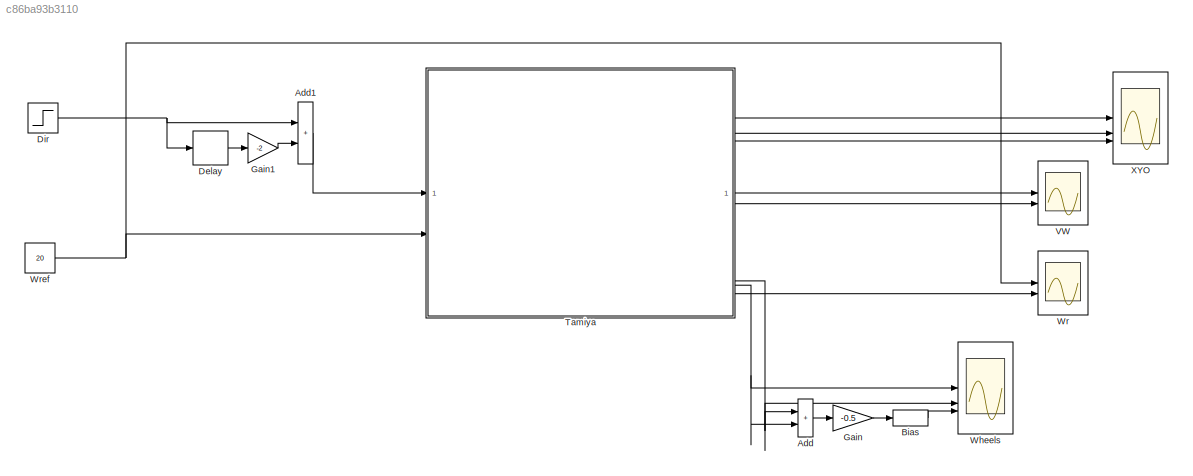
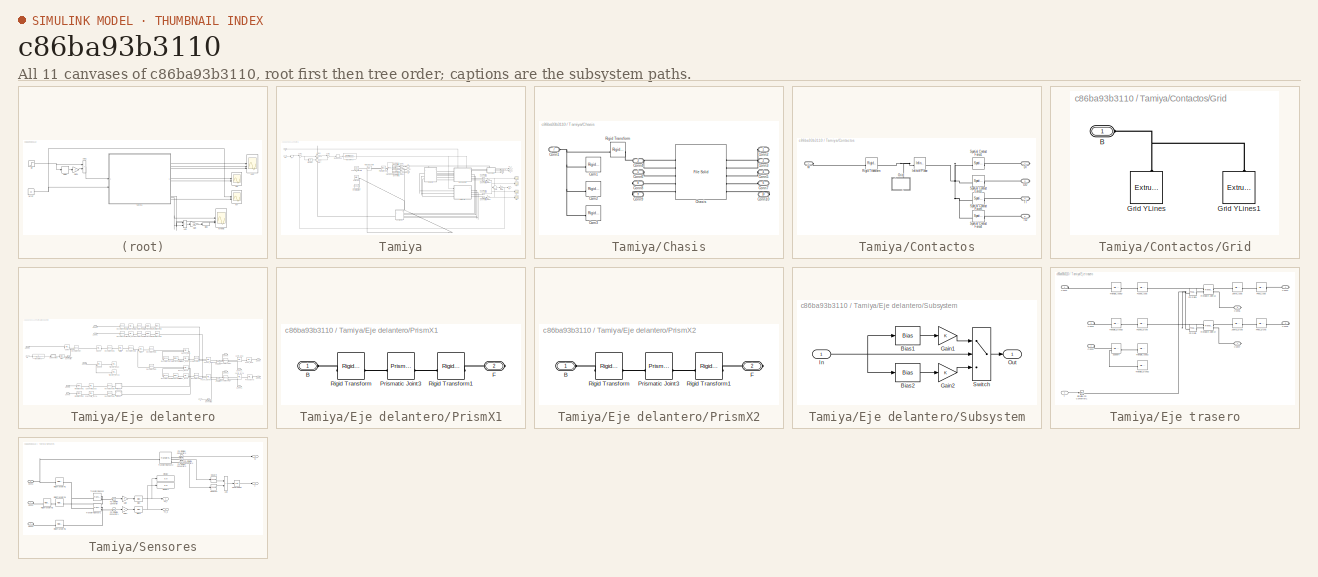
[diagram: thumbnail index - all 11 canvases of the model, root first then tree order]
MODEL slx_c86ba93b3110
KIND model
CONFIG AbsTol = 1e-3
CONFIG EnableMultiTasking = on
CONFIG FixedStep = T0
CONFIG MaxStep = 0.001
CONFIG MinStep = auto
CONFIG PostLoadFcn = T=0.01 ; T0=0.0005 ;\nsf=1 ; df=0.6 ; dc=0.01 ; rz=0.01 ;\n\ndimx=10 ; dimy=10 ; ancho=0.01 ; alto=0.01 ; hueco=0.5 ; color=[1 0 0] ;\nGGx=[] ;\nfor ii=-dimx/(2*hueco)+1:dimx/(2*hueco)+1\n    GGx=[GGx ; [-ancho+(ii-1)*(2*hueco) dimy ; -ancho+(ii-1)*(2*hueco) -dimy ; ancho+(ii-1)*(2*hueco) -dimy ; ancho+(ii-1)*(2*hueco) dimy]] ;\nend\nGGx=GGx*0.5 ;\nGGy=[] ;\nfor ii=-dimy/(2*hueco)+1:dimy/(2*hueco)+1\n    GGy...<+154ch>
CONFIG RelTol = 1e-3
CONFIG SampleTimeConstraint = Unconstrained
CONFIG SolverName = FixedStepAuto
CONFIG StartTime = 0.0
CONFIG StopTime = 35
BLOCK [Sum] Add
  IconShape = rectangular
BLOCK [Sum] Add1
  IconShape = rectangular
BLOCK [Bias] Bias
  Bias = 90
  SaturateOnIntegerOverflow = off
BLOCK [Delay] Delay
  DelayLength = 19.3/T
  InputPortMap = u0
BLOCK [Step] Dir
  After = 15
  SampleTime = T
BLOCK [Gain] Gain
  Gain = -0.5
BLOCK [Gain] Gain1
  Gain = -2
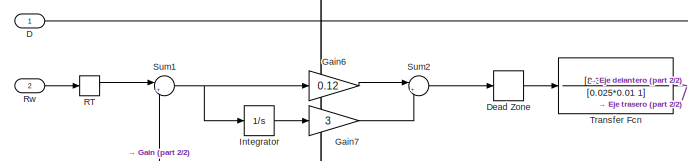
[diagram: Tamiya - part 1/2, top left region]
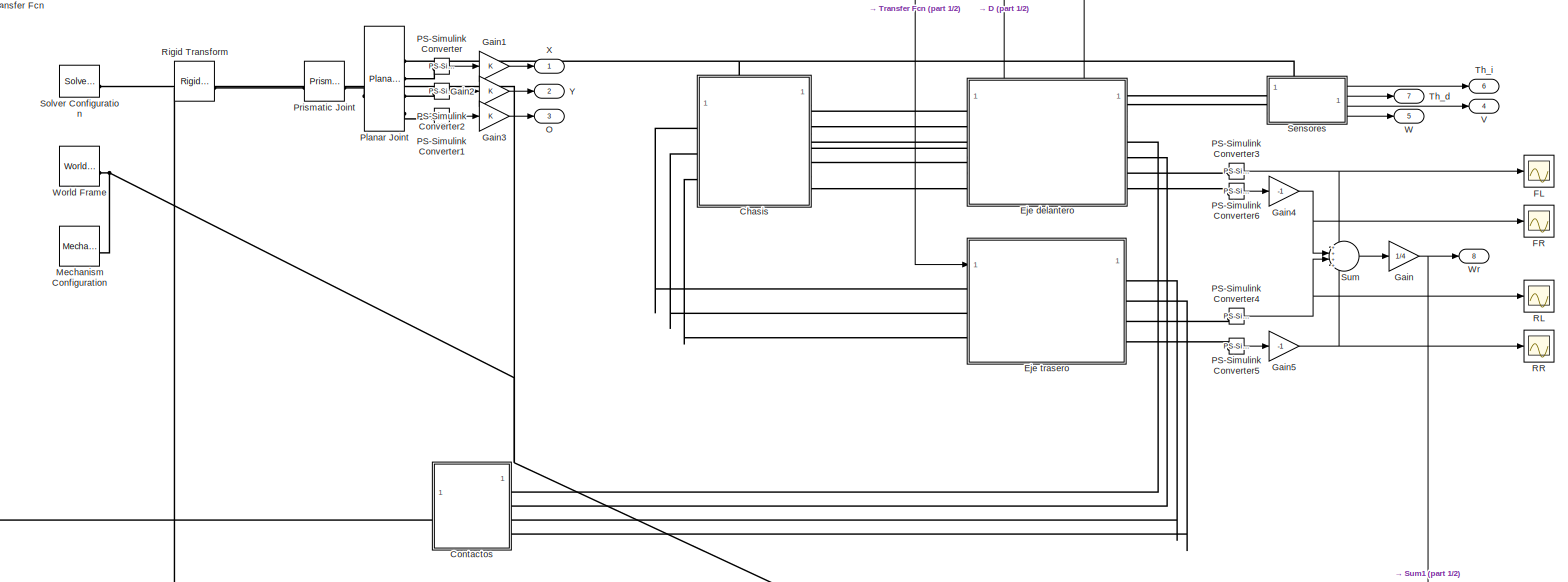
[diagram: Tamiya - part 2/2, central region]
BLOCK [SubSystem] Tamiya
BLOCK [SubSystem] Tamiya/Chasis
  PortSchema = {"entries":[{"content":{"sides":[{"content":{"connectorIds":["LConn1","LConn2","LConn3","LConn4","LConn5","LConn6"]},"type":"ConnectorPlacement.EquallySpacedRectSide","uuid":"4a00ef8b-857d-47c2-8fa9-792f76e3628b"},{"content":{"connectorIds":["RConn1","RConn2","RConn3"],"side":"RIGHT"},"type":"ConnectorPlacement.EquallySpacedRectSide","uuid":"2247647d-b745-4173-ae7c-671e52deb028"},{"content":{"conn...<+316ch>
BLOCK [Reference] Tamiya/Chasis/Cam1  REF=sm_lib/Frames and
Transforms/Rigid
Transform
  SourceBlock = sm_lib/Frames and\nTransforms/Rigid\nTransform
  SourceType = Rigid\nTransform
BLOCK [Reference] Tamiya/Chasis/Cam2  REF=sm_lib/Frames and
Transforms/Rigid
Transform
  SourceBlock = sm_lib/Frames and\nTransforms/Rigid\nTransform
  SourceType = Rigid\nTransform
BLOCK [Reference] Tamiya/Chasis/Cam3  REF=sm_lib/Frames and
Transforms/Rigid
Transform
  SourceBlock = sm_lib/Frames and\nTransforms/Rigid\nTransform
  SourceType = Rigid\nTransform
BLOCK [Reference] Tamiya/Chasis/Chasis  REF=sm_lib/Body Elements/File Solid
  SourceBlock = sm_lib/Body Elements/File Solid
  SourceType = File Solid
BLOCK [PMIOPort] Tamiya/Chasis/Conn1
  Port = 7
  Side = Left
BLOCK [PMIOPort] Tamiya/Chasis/Conn10
  Port = 10
  Side = Right
BLOCK [PMIOPort] Tamiya/Chasis/Conn2
  Side = Left
BLOCK [PMIOPort] Tamiya/Chasis/Conn3
  Port = 2
  Side = Left
BLOCK [PMIOPort] Tamiya/Chasis/Conn4
  Port = 3
  Side = Left
BLOCK [PMIOPort] Tamiya/Chasis/Conn5
  Port = 4
  Side = Left
BLOCK [PMIOPort] Tamiya/Chasis/Conn6
  Port = 5
  Side = Left
BLOCK [PMIOPort] Tamiya/Chasis/Conn7
  Port = 6
  Side = Left
BLOCK [PMIOPort] Tamiya/Chasis/Conn8
  Port = 8
  Side = Right
BLOCK [PMIOPort] Tamiya/Chasis/Conn9
  Port = 9
  Side = Right
BLOCK [Reference] Tamiya/Chasis/Rigid Transform  REF=sm_lib/Frames and
Transforms/Rigid
Transform
  SourceBlock = sm_lib/Frames and\nTransforms/Rigid\nTransform
  SourceType = Rigid\nTransform
BLOCK [SubSystem] Tamiya/Contactos
BLOCK [PMIOPort] Tamiya/Contactos/DD
  Port = 3
  Side = Right
BLOCK [PMIOPort] Tamiya/Contactos/DI
  Port = 2
  Side = Right
BLOCK [SubSystem] Tamiya/Contactos/Grid
  NameLocation = right
BLOCK [PMIOPort] Tamiya/Contactos/Grid/B
  Side = Left
BLOCK [Reference] Tamiya/Contactos/Grid/Grid YLines  REF=sm_lib/Body Elements/Extruded Solid
  NameLocation = right
  SourceBlock = sm_lib/Body Elements/Extruded Solid
  SourceType = Extruded Solid
BLOCK [Reference] Tamiya/Contactos/Grid/Grid YLines1  REF=sm_lib/Body Elements/Extruded Solid
  NameLocation = right
  SourceBlock = sm_lib/Body Elements/Extruded Solid
  SourceType = Extruded Solid
BLOCK [Reference] Tamiya/Contactos/Infinite Plane  REF=sm_lib/Curves and Surfaces/Infinite Plane
  SourceBlock = sm_lib/Curves and Surfaces/Infinite Plane
  SourceType = Infinite Plane
BLOCK [Reference] Tamiya/Contactos/Rigid Transform  REF=sm_lib/Frames and
Transforms/Rigid
Transform
  SourceBlock = sm_lib/Frames and\nTransforms/Rigid\nTransform
  SourceType = Rigid\nTransform
BLOCK [Reference] Tamiya/Contactos/Spatial Contact Force1  REF=sm_lib/Forces and
Torques/Spatial
Contact Force
  SourceBlock = sm_lib/Forces and\nTorques/Spatial\nContact Force
  SourceType = Spatial\nContact Force
BLOCK [Reference] Tamiya/Contactos/Spatial Contact Force2  REF=sm_lib/Forces and
Torques/Spatial
Contact Force
  SourceBlock = sm_lib/Forces and\nTorques/Spatial\nContact Force
  SourceType = Spatial\nContact Force
BLOCK [Reference] Tamiya/Contactos/Spatial Contact Force3  REF=sm_lib/Forces and
Torques/Spatial
Contact Force
  SourceBlock = sm_lib/Forces and\nTorques/Spatial\nContact Force
  SourceType = Spatial\nContact Force
BLOCK [Reference] Tamiya/Contactos/Spatial Contact Force4  REF=sm_lib/Forces and
Torques/Spatial
Contact Force
  SourceBlock = sm_lib/Forces and\nTorques/Spatial\nContact Force
  SourceType = Spatial\nContact Force
BLOCK [PMIOPort] Tamiya/Contactos/TD
  Port = 5
  Side = Right
BLOCK [PMIOPort] Tamiya/Contactos/TI
  Port = 4
  Side = Right
BLOCK [PMIOPort] Tamiya/Contactos/W
  Side = Left
BLOCK [Inport] Tamiya/D
BLOCK [DeadZone] Tamiya/Dead Zone
  LowerValue = -0.35
  UpperValue = 0.35
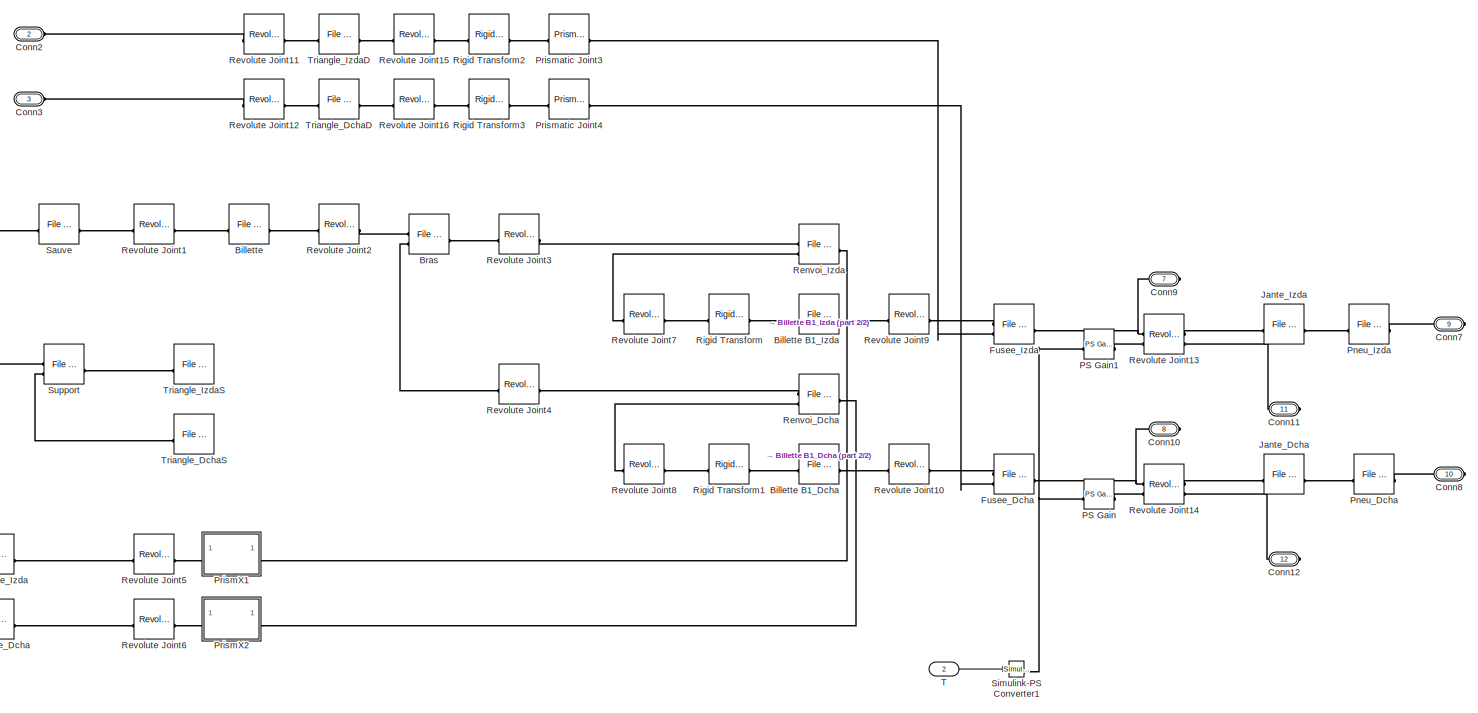
[diagram: Tamiya/Eje delantero - part 1/2, center side, full height]
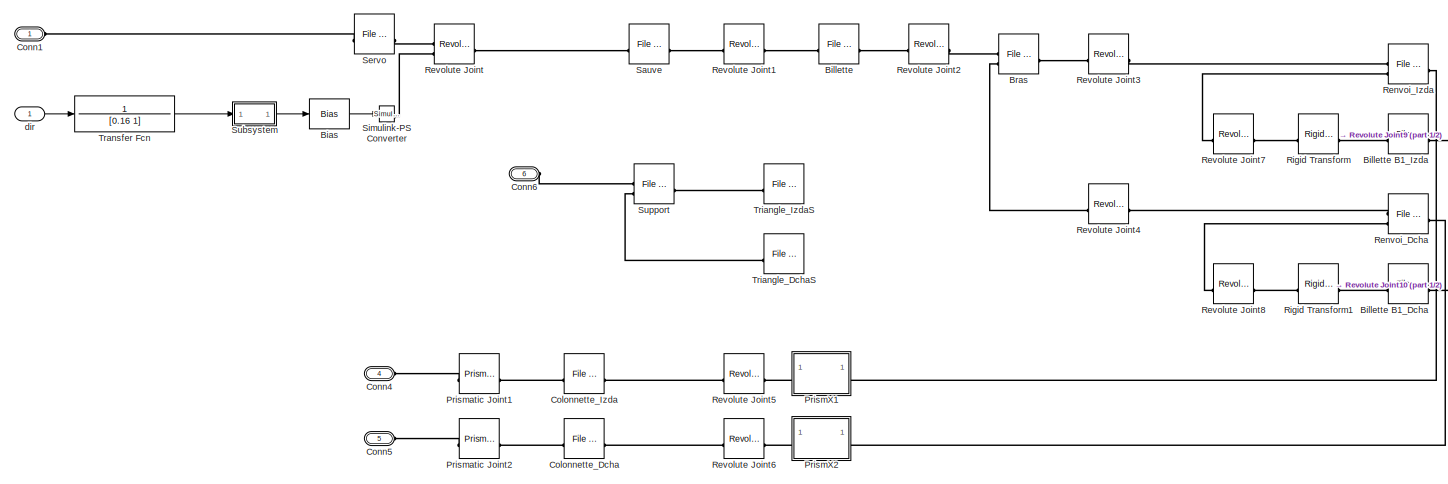
[diagram: Tamiya/Eje delantero - part 2/2, central region]
BLOCK [SubSystem] Tamiya/Eje delantero
  PortSchema = {"entries":[{"content":{"sides":[{"content":{"connectorIds":["LConn1","LConn2","LConn3","LConn4","LConn5","LConn6"]},"type":"ConnectorPlacement.EquallySpacedRectSide","uuid":"f52de6f6-a0c0-4908-b46e-2be19df1b405"},{"content":{"connectorIds":["RConn1","RConn2","RConn3","RConn4","RConn5","RConn6"],"side":"RIGHT"},"type":"ConnectorPlacement.EquallySpacedRectSide","uuid":"e6cd9f79-2de6-44f1-8695-a40e6...<+346ch>
BLOCK [Bias] Tamiya/Eje delantero/Bias
  Bias = 0.05
  SaturateOnIntegerOverflow = off
BLOCK [Reference] Tamiya/Eje delantero/Billette  REF=sm_lib/Body Elements/File Solid
  SourceBlock = sm_lib/Body Elements/File Solid
  SourceType = File Solid
BLOCK [Reference] Tamiya/Eje delantero/Billette B1_Dcha  REF=sm_lib/Body Elements/File Solid
  SourceBlock = sm_lib/Body Elements/File Solid
  SourceType = File Solid
BLOCK [Reference] Tamiya/Eje delantero/Billette B1_Izda  REF=sm_lib/Body Elements/File Solid
  SourceBlock = sm_lib/Body Elements/File Solid
  SourceType = File Solid
BLOCK [Reference] Tamiya/Eje delantero/Bras  REF=sm_lib/Body Elements/File Solid
  SourceBlock = sm_lib/Body Elements/File Solid
  SourceType = File Solid
BLOCK [Reference] Tamiya/Eje delantero/Colonnette_Dcha  REF=sm_lib/Body Elements/File Solid
  SourceBlock = sm_lib/Body Elements/File Solid
  SourceType = File Solid
BLOCK [Reference] Tamiya/Eje delantero/Colonnette_Izda  REF=sm_lib/Body Elements/File Solid
  SourceBlock = sm_lib/Body Elements/File Solid
  SourceType = File Solid
BLOCK [PMIOPort] Tamiya/Eje delantero/Conn1
  Side = Left
BLOCK [PMIOPort] Tamiya/Eje delantero/Conn10
  Port = 8
  Side = Right
BLOCK [PMIOPort] Tamiya/Eje delantero/Conn11
  Port = 11
  Side = Right
BLOCK [PMIOPort] Tamiya/Eje delantero/Conn12
  Port = 12
  Side = Right
BLOCK [PMIOPort] Tamiya/Eje delantero/Conn2
  Port = 2
  Side = Left
BLOCK [PMIOPort] Tamiya/Eje delantero/Conn3
  Port = 3
  Side = Left
BLOCK [PMIOPort] Tamiya/Eje delantero/Conn4
  Port = 4
  Side = Left
BLOCK [PMIOPort] Tamiya/Eje delantero/Conn5
  Port = 5
  Side = Left
BLOCK [PMIOPort] Tamiya/Eje delantero/Conn6
  Port = 6
  Side = Left
BLOCK [PMIOPort] Tamiya/Eje delantero/Conn7
  Port = 9
  Side = Right
BLOCK [PMIOPort] Tamiya/Eje delantero/Conn8
  Port = 10
  Side = Right
BLOCK [PMIOPort] Tamiya/Eje delantero/Conn9
  Port = 7
  Side = Right
BLOCK [Reference] Tamiya/Eje delantero/Fusee_Dcha  REF=sm_lib/Body Elements/File Solid
  SourceBlock = sm_lib/Body Elements/File Solid
  SourceType = File Solid
BLOCK [Reference] Tamiya/Eje delantero/Fusee_Izda  REF=sm_lib/Body Elements/File Solid
  SourceBlock = sm_lib/Body Elements/File Solid
  SourceType = File Solid
BLOCK [Reference] Tamiya/Eje delantero/Jante_Dcha  REF=sm_lib/Body Elements/File Solid
  SourceBlock = sm_lib/Body Elements/File Solid
  SourceType = File Solid
BLOCK [Reference] Tamiya/Eje delantero/Jante_Izda  REF=sm_lib/Body Elements/File Solid
  SourceBlock = sm_lib/Body Elements/File Solid
  SourceType = File Solid
BLOCK [Reference] Tamiya/Eje delantero/PS Gain  REF=fl_lib/Physical Signals/Functions/PS Gain
  SourceBlock = fl_lib/Physical Signals/Functions/PS Gain
  SourceType = PS Gain
BLOCK [Reference] Tamiya/Eje delantero/PS Gain1  REF=fl_lib/Physical Signals/Functions/PS Gain
  SourceBlock = fl_lib/Physical Signals/Functions/PS Gain
  SourceType = PS Gain
BLOCK [Reference] Tamiya/Eje delantero/Pneu_Dcha  REF=sm_lib/Body Elements/File Solid
  SourceBlock = sm_lib/Body Elements/File Solid
  SourceType = File Solid
BLOCK [Reference] Tamiya/Eje delantero/Pneu_Izda  REF=sm_lib/Body Elements/File Solid
  SourceBlock = sm_lib/Body Elements/File Solid
  SourceType = File Solid
BLOCK [SubSystem] Tamiya/Eje delantero/PrismX1
BLOCK [PMIOPort] Tamiya/Eje delantero/PrismX1/B
  Side = Left
BLOCK [PMIOPort] Tamiya/Eje delantero/PrismX1/F
  Port = 2
  Side = Right
BLOCK [Reference] Tamiya/Eje delantero/PrismX1/Prismatic Joint3  REF=sm_lib/Joints/Prismatic
Joint
  SourceBlock = sm_lib/Joints/Prismatic\nJoint
  SourceType = Prismatic\nJoint
BLOCK [Reference] Tamiya/Eje delantero/PrismX1/Rigid Transform  REF=sm_lib/Frames and
Transforms/Rigid
Transform
  SourceBlock = sm_lib/Frames and\nTransforms/Rigid\nTransform
  SourceType = Rigid\nTransform
BLOCK [Reference] Tamiya/Eje delantero/PrismX1/Rigid Transform1  REF=sm_lib/Frames and
Transforms/Rigid
Transform
  SourceBlock = sm_lib/Frames and\nTransforms/Rigid\nTransform
  SourceType = Rigid\nTransform
BLOCK [SubSystem] Tamiya/Eje delantero/PrismX2
BLOCK [PMIOPort] Tamiya/Eje delantero/PrismX2/B
  Side = Left
BLOCK [PMIOPort] Tamiya/Eje delantero/PrismX2/F
  Port = 2
  Side = Right
BLOCK [Reference] Tamiya/Eje delantero/PrismX2/Prismatic Joint3  REF=sm_lib/Joints/Prismatic
Joint
  SourceBlock = sm_lib/Joints/Prismatic\nJoint
  SourceType = Prismatic\nJoint
BLOCK [Reference] Tamiya/Eje delantero/PrismX2/Rigid Transform  REF=sm_lib/Frames and
Transforms/Rigid
Transform
  SourceBlock = sm_lib/Frames and\nTransforms/Rigid\nTransform
  SourceType = Rigid\nTransform
BLOCK [Reference] Tamiya/Eje delantero/PrismX2/Rigid Transform1  REF=sm_lib/Frames and
Transforms/Rigid
Transform
  SourceBlock = sm_lib/Frames and\nTransforms/Rigid\nTransform
  SourceType = Rigid\nTransform
BLOCK [Reference] Tamiya/Eje delantero/Prismatic Joint1  REF=sm_lib/Joints/Prismatic
Joint
  SourceBlock = sm_lib/Joints/Prismatic\nJoint
  SourceType = Prismatic\nJoint
BLOCK [Reference] Tamiya/Eje delantero/Prismatic Joint2  REF=sm_lib/Joints/Prismatic
Joint
  SourceBlock = sm_lib/Joints/Prismatic\nJoint
  SourceType = Prismatic\nJoint
BLOCK [Reference] Tamiya/Eje delantero/Prismatic Joint3  REF=sm_lib/Joints/Prismatic
Joint
  SourceBlock = sm_lib/Joints/Prismatic\nJoint
  SourceType = Prismatic\nJoint
BLOCK [Reference] Tamiya/Eje delantero/Prismatic Joint4  REF=sm_lib/Joints/Prismatic
Joint
  SourceBlock = sm_lib/Joints/Prismatic\nJoint
  SourceType = Prismatic\nJoint
BLOCK [Reference] Tamiya/Eje delantero/Renvoi_Dcha  REF=sm_lib/Body Elements/File Solid
  SourceBlock = sm_lib/Body Elements/File Solid
  SourceType = File Solid
BLOCK [Reference] Tamiya/Eje delantero/Renvoi_Izda  REF=sm_lib/Body Elements/File Solid
  SourceBlock = sm_lib/Body Elements/File Solid
  SourceType = File Solid
BLOCK [Reference] Tamiya/Eje delantero/Revolute Joint  REF=sm_lib/Joints/Revolute Joint
  SourceBlock = sm_lib/Joints/Revolute Joint
  SourceType = Revolute Joint
BLOCK [Reference] Tamiya/Eje delantero/Revolute Joint1  REF=sm_lib/Joints/Revolute Joint
  SourceBlock = sm_lib/Joints/Revolute Joint
  SourceType = Revolute Joint
BLOCK [Reference] Tamiya/Eje delantero/Revolute Joint10  REF=sm_lib/Joints/Revolute Joint
  SourceBlock = sm_lib/Joints/Revolute Joint
  SourceType = Revolute Joint
BLOCK [Reference] Tamiya/Eje delantero/Revolute Joint11  REF=sm_lib/Joints/Revolute Joint
  SourceBlock = sm_lib/Joints/Revolute Joint
  SourceType = Revolute Joint
BLOCK [Reference] Tamiya/Eje delantero/Revolute Joint12  REF=sm_lib/Joints/Revolute Joint
  SourceBlock = sm_lib/Joints/Revolute Joint
  SourceType = Revolute Joint
BLOCK [Reference] Tamiya/Eje delantero/Revolute Joint13  REF=sm_lib/Joints/Revolute Joint
  SourceBlock = sm_lib/Joints/Revolute Joint
  SourceType = Revolute Joint
BLOCK [Reference] Tamiya/Eje delantero/Revolute Joint14  REF=sm_lib/Joints/Revolute Joint
  SourceBlock = sm_lib/Joints/Revolute Joint
  SourceType = Revolute Joint
BLOCK [Reference] Tamiya/Eje delantero/Revolute Joint15  REF=sm_lib/Joints/Revolute Joint
  SourceBlock = sm_lib/Joints/Revolute Joint
  SourceType = Revolute Joint
BLOCK [Reference] Tamiya/Eje delantero/Revolute Joint16  REF=sm_lib/Joints/Revolute Joint
  SourceBlock = sm_lib/Joints/Revolute Joint
  SourceType = Revolute Joint
BLOCK [Reference] Tamiya/Eje delantero/Revolute Joint2  REF=sm_lib/Joints/Revolute Joint
  SourceBlock = sm_lib/Joints/Revolute Joint
  SourceType = Revolute Joint
BLOCK [Reference] Tamiya/Eje delantero/Revolute Joint3  REF=sm_lib/Joints/Revolute Joint
  SourceBlock = sm_lib/Joints/Revolute Joint
  SourceType = Revolute Joint
BLOCK [Reference] Tamiya/Eje delantero/Revolute Joint4  REF=sm_lib/Joints/Revolute Joint
  SourceBlock = sm_lib/Joints/Revolute Joint
  SourceType = Revolute Joint
BLOCK [Reference] Tamiya/Eje delantero/Revolute Joint5  REF=sm_lib/Joints/Revolute Joint
  SourceBlock = sm_lib/Joints/Revolute Joint
  SourceType = Revolute Joint
BLOCK [Reference] Tamiya/Eje delantero/Revolute Joint6  REF=sm_lib/Joints/Revolute Joint
  SourceBlock = sm_lib/Joints/Revolute Joint
  SourceType = Revolute Joint
BLOCK [Reference] Tamiya/Eje delantero/Revolute Joint7  REF=sm_lib/Joints/Revolute Joint
  SourceBlock = sm_lib/Joints/Revolute Joint
  SourceType = Revolute Joint
BLOCK [Reference] Tamiya/Eje delantero/Revolute Joint8  REF=sm_lib/Joints/Revolute Joint
  SourceBlock = sm_lib/Joints/Revolute Joint
  SourceType = Revolute Joint
BLOCK [Reference] Tamiya/Eje delantero/Revolute Joint9  REF=sm_lib/Joints/Revolute Joint
  SourceBlock = sm_lib/Joints/Revolute Joint
  SourceType = Revolute Joint
BLOCK [Reference] Tamiya/Eje delantero/Rigid Transform  REF=sm_lib/Frames and
Transforms/Rigid
Transform
  SourceBlock = sm_lib/Frames and\nTransforms/Rigid\nTransform
  SourceType = Rigid\nTransform
BLOCK [Reference] Tamiya/Eje delantero/Rigid Transform1  REF=sm_lib/Frames and
Transforms/Rigid
Transform
  SourceBlock = sm_lib/Frames and\nTransforms/Rigid\nTransform
  SourceType = Rigid\nTransform
BLOCK [Reference] Tamiya/Eje delantero/Rigid Transform2  REF=sm_lib/Frames and
Transforms/Rigid
Transform
  SourceBlock = sm_lib/Frames and\nTransforms/Rigid\nTransform
  SourceType = Rigid\nTransform
BLOCK [Reference] Tamiya/Eje delantero/Rigid Transform3  REF=sm_lib/Frames and
Transforms/Rigid
Transform
  SourceBlock = sm_lib/Frames and\nTransforms/Rigid\nTransform
  SourceType = Rigid\nTransform
BLOCK [Reference] Tamiya/Eje delantero/Sauve  REF=sm_lib/Body Elements/File Solid
  SourceBlock = sm_lib/Body Elements/File Solid
  SourceType = File Solid
BLOCK [Reference] Tamiya/Eje delantero/Servo  REF=sm_lib/Body Elements/File Solid
  SourceBlock = sm_lib/Body Elements/File Solid
  SourceType = File Solid
BLOCK [Reference] Tamiya/Eje delantero/Simulink-PS Converter  REF=nesl_utility/Simulink-PS
Converter
  SourceBlock = nesl_utility/Simulink-PS\nConverter
  SourceType = Simulink-PS\nConverter
BLOCK [Reference] Tamiya/Eje delantero/Simulink-PS Converter1  REF=nesl_utility/Simulink-PS
Converter
  SourceBlock = nesl_utility/Simulink-PS\nConverter
  SourceType = Simulink-PS\nConverter
BLOCK [SubSystem] Tamiya/Eje delantero/Subsystem
BLOCK [Bias] Tamiya/Eje delantero/Subsystem/Bias1
  SaturateOnIntegerOverflow = off
BLOCK [Bias] Tamiya/Eje delantero/Subsystem/Bias2
  Bias = -1.65
  SaturateOnIntegerOverflow = off
BLOCK [Gain] Tamiya/Eje delantero/Subsystem/Gain1
BLOCK [Gain] Tamiya/Eje delantero/Subsystem/Gain2
BLOCK [Inport] Tamiya/Eje delantero/Subsystem/In
BLOCK [Outport] Tamiya/Eje delantero/Subsystem/Out
BLOCK [Switch] Tamiya/Eje delantero/Subsystem/Switch
  InputSameDT = off
  SaturateOnIntegerOverflow = off
BLOCK [Reference] Tamiya/Eje delantero/Support  REF=sm_lib/Body Elements/File Solid
  SourceBlock = sm_lib/Body Elements/File Solid
  SourceType = File Solid
BLOCK [Inport] Tamiya/Eje delantero/T
  Port = 2
BLOCK [TransferFcn] Tamiya/Eje delantero/Transfer Fcn
  Denominator = [0.16 1]
  Numerator = 1
BLOCK [Reference] Tamiya/Eje delantero/Triangle_DchaD  REF=sm_lib/Body Elements/File Solid
  SourceBlock = sm_lib/Body Elements/File Solid
  SourceType = File Solid
BLOCK [Reference] Tamiya/Eje delantero/Triangle_DchaS  REF=sm_lib/Body Elements/File Solid
  SourceBlock = sm_lib/Body Elements/File Solid
  SourceType = File Solid
BLOCK [Reference] Tamiya/Eje delantero/Triangle_IzdaD  REF=sm_lib/Body Elements/File Solid
  SourceBlock = sm_lib/Body Elements/File Solid
  SourceType = File Solid
BLOCK [Reference] Tamiya/Eje delantero/Triangle_IzdaS  REF=sm_lib/Body Elements/File Solid
  SourceBlock = sm_lib/Body Elements/File Solid
  SourceType = File Solid
BLOCK [Inport] Tamiya/Eje delantero/dir
BLOCK [SubSystem] Tamiya/Eje trasero
BLOCK [PMIOPort] Tamiya/Eje trasero/Conn1
  Side = Left
BLOCK [PMIOPort] Tamiya/Eje trasero/Conn2
  Port = 2
  Side = Left
BLOCK [PMIOPort] Tamiya/Eje trasero/Conn3
  Port = 3
  Side = Left
BLOCK [PMIOPort] Tamiya/Eje trasero/Conn4
  Port = 4
  Side = Right
BLOCK [PMIOPort] Tamiya/Eje trasero/Conn5
  Port = 5
  Side = Right
BLOCK [PMIOPort] Tamiya/Eje trasero/Conn6
  Port = 6
  Side = Right
BLOCK [PMIOPort] Tamiya/Eje trasero/Conn7
  Port = 7
  Side = Right
BLOCK [Reference] Tamiya/Eje trasero/Fusee_Dcha  REF=sm_lib/Body Elements/File Solid
  SourceBlock = sm_lib/Body Elements/File Solid
  SourceType = File Solid
BLOCK [Reference] Tamiya/Eje trasero/Fusee_Izda  REF=sm_lib/Body Elements/File Solid
  SourceBlock = sm_lib/Body Elements/File Solid
  SourceType = File Solid
BLOCK [Reference] Tamiya/Eje trasero/Jante_Dcha  REF=sm_lib/Body Elements/File Solid
  SourceBlock = sm_lib/Body Elements/File Solid
  SourceType = File Solid
BLOCK [Reference] Tamiya/Eje trasero/Jante_Izda  REF=sm_lib/Body Elements/File Solid
  SourceBlock = sm_lib/Body Elements/File Solid
  SourceType = File Solid
BLOCK [Reference] Tamiya/Eje trasero/PS Gain  REF=fl_lib/Physical Signals/Functions/PS Gain
  SourceBlock = fl_lib/Physical Signals/Functions/PS Gain
  SourceType = PS Gain
BLOCK [Reference] Tamiya/Eje trasero/PS Gain1  REF=fl_lib/Physical Signals/Functions/PS Gain
  SourceBlock = fl_lib/Physical Signals/Functions/PS Gain
  SourceType = PS Gain
BLOCK [Reference] Tamiya/Eje trasero/Pneu_Dcha  REF=sm_lib/Body Elements/File Solid
  SourceBlock = sm_lib/Body Elements/File Solid
  SourceType = File Solid
BLOCK [Reference] Tamiya/Eje trasero/Pneu_Izda  REF=sm_lib/Body Elements/File Solid
  SourceBlock = sm_lib/Body Elements/File Solid
  SourceType = File Solid
BLOCK [Reference] Tamiya/Eje trasero/Revolute Joint13  REF=sm_lib/Joints/Revolute Joint
  SourceBlock = sm_lib/Joints/Revolute Joint
  SourceType = Revolute Joint
BLOCK [Reference] Tamiya/Eje trasero/Revolute Joint14  REF=sm_lib/Joints/Revolute Joint
  SourceBlock = sm_lib/Joints/Revolute Joint
  SourceType = Revolute Joint
BLOCK [Reference] Tamiya/Eje trasero/Simulink-PS Converter1  REF=nesl_utility/Simulink-PS
Converter
  SourceBlock = nesl_utility/Simulink-PS\nConverter
  SourceType = Simulink-PS\nConverter
BLOCK [Reference] Tamiya/Eje trasero/Support  REF=sm_lib/Body Elements/File Solid
  SourceBlock = sm_lib/Body Elements/File Solid
  SourceType = File Solid
BLOCK [Inport] Tamiya/Eje trasero/T
BLOCK [Reference] Tamiya/Eje trasero/Triangle_DchaD  REF=sm_lib/Body Elements/File Solid
  SourceBlock = sm_lib/Body Elements/File Solid
  SourceType = File Solid
BLOCK [Reference] Tamiya/Eje trasero/Triangle_DchaS  REF=sm_lib/Body Elements/File Solid
  SourceBlock = sm_lib/Body Elements/File Solid
  SourceType = File Solid
BLOCK [Reference] Tamiya/Eje trasero/Triangle_IzdaD  REF=sm_lib/Body Elements/File Solid
  SourceBlock = sm_lib/Body Elements/File Solid
  SourceType = File Solid
BLOCK [Reference] Tamiya/Eje trasero/Triangle_IzdaS  REF=sm_lib/Body Elements/File Solid
  SourceBlock = sm_lib/Body Elements/File Solid
  SourceType = File Solid
BLOCK [Scope] Tamiya/FL
  Floating = off
  NumInputPorts = 1
  ScopeSpecificationString = Simulink.scopes.TimeScopeBlockCfg('CurrentConfiguration', extmgr.ConfigurationSet(extmgr.Configuration('Core','General UI',true),extmgr.Configuration('Core','Source UI',true),extmgr.Configuration('Sources','WiredSimulink',true,'DataLoggingVariableName','ScopeData1'),extmgr.Configuration('Visuals','Time Domain',true,'SerializedDisplays',{struct('MinYLimReal','-9.19738','MaxYLimReal','33.68499','YLa...<+1427ch>
BLOCK [Scope] Tamiya/FR
  Floating = off
  NumInputPorts = 1
  ScopeSpecificationString = Simulink.scopes.TimeScopeBlockCfg('CurrentConfiguration', extmgr.ConfigurationSet(extmgr.Configuration('Core','General UI',true),extmgr.Configuration('Core','Source UI',true),extmgr.Configuration('Sources','WiredSimulink',true,'DataLoggingVariableName','ScopeData2'),extmgr.Configuration('Visuals','Time Domain',true,'SerializedDisplays',{struct('MinYLimReal','-35.05594','MaxYLimReal','106.21807','Y...<+1416ch>
BLOCK [Gain] Tamiya/Gain
  Gain = 1/4
BLOCK [Gain] Tamiya/Gain1
BLOCK [Gain] Tamiya/Gain2
BLOCK [Gain] Tamiya/Gain3
BLOCK [Gain] Tamiya/Gain4
  Gain = -1
BLOCK [Gain] Tamiya/Gain5
  Gain = -1
BLOCK [Gain] Tamiya/Gain6
  Gain = 0.12
BLOCK [Gain] Tamiya/Gain7
  Gain = 3
BLOCK [Integrator] Tamiya/Integrator
BLOCK [Reference] Tamiya/Mechanism Configuration  REF=sm_lib/Utilities/Mechanism
Configuration
  SourceBlock = sm_lib/Utilities/Mechanism\nConfiguration
  SourceType = Mechanism\nConfiguration
BLOCK [Outport] Tamiya/O
  NameLocation = right
  Port = 3
BLOCK [Reference] Tamiya/PS-Simulink Converter  REF=nesl_utility/PS-Simulink
Converter
  SourceBlock = nesl_utility/PS-Simulink\nConverter
  SourceType = PS-Simulink\nConverter
BLOCK [Reference] Tamiya/PS-Simulink Converter1  REF=nesl_utility/PS-Simulink
Converter
  SourceBlock = nesl_utility/PS-Simulink\nConverter
  SourceType = PS-Simulink\nConverter
BLOCK [Reference] Tamiya/PS-Simulink Converter2  REF=nesl_utility/PS-Simulink
Converter
  SourceBlock = nesl_utility/PS-Simulink\nConverter
  SourceType = PS-Simulink\nConverter
BLOCK [Reference] Tamiya/PS-Simulink Converter3  REF=nesl_utility/PS-Simulink
Converter
  SourceBlock = nesl_utility/PS-Simulink\nConverter
  SourceType = PS-Simulink\nConverter
BLOCK [Reference] Tamiya/PS-Simulink Converter4  REF=nesl_utility/PS-Simulink
Converter
  SourceBlock = nesl_utility/PS-Simulink\nConverter
  SourceType = PS-Simulink\nConverter
BLOCK [Reference] Tamiya/PS-Simulink Converter5  REF=nesl_utility/PS-Simulink
Converter
  SourceBlock = nesl_utility/PS-Simulink\nConverter
  SourceType = PS-Simulink\nConverter
BLOCK [Reference] Tamiya/PS-Simulink Converter6  REF=nesl_utility/PS-Simulink
Converter
  SourceBlock = nesl_utility/PS-Simulink\nConverter
  SourceType = PS-Simulink\nConverter
BLOCK [Reference] Tamiya/Planar Joint  REF=sm_lib/Joints/Planar Joint
  SourceBlock = sm_lib/Joints/Planar Joint
  SourceType = Planar Joint
BLOCK [Reference] Tamiya/Prismatic Joint  REF=sm_lib/Joints/Prismatic
Joint
  SourceBlock = sm_lib/Joints/Prismatic\nJoint
  SourceType = Prismatic\nJoint
BLOCK [Scope] Tamiya/RL
  Floating = off
  NumInputPorts = 1
  ScopeSpecificationString = Simulink.scopes.TimeScopeBlockCfg('CurrentConfiguration', extmgr.ConfigurationSet(extmgr.Configuration('Core','General UI',true),extmgr.Configuration('Core','Source UI',true),extmgr.Configuration('Sources','WiredSimulink',true,'DataLoggingVariableName','ScopeData4'),extmgr.Configuration('Visuals','Time Domain',true,'SerializedDisplays',{struct('MinYLimReal','-39.33008','MaxYLimReal','39.09038','YL...<+1429ch>
BLOCK [Scope] Tamiya/RR
  Floating = off
  NumInputPorts = 1
  ScopeSpecificationString = Simulink.scopes.TimeScopeBlockCfg('CurrentConfiguration', extmgr.ConfigurationSet(extmgr.Configuration('Core','General UI',true),extmgr.Configuration('Core','Source UI',true),extmgr.Configuration('Sources','WiredSimulink',true,'DataLoggingVariableName','ScopeData3'),extmgr.Configuration('Visuals','Time Domain',true,'SerializedDisplays',{struct('MinYLimReal','-39.3296','MaxYLimReal','39.09083','YLa...<+1408ch>
BLOCK [RateTransition] Tamiya/RT
  OutPortSampleTime = 0.0005
BLOCK [Reference] Tamiya/Rigid Transform  REF=sm_lib/Frames and
Transforms/Rigid
Transform
  SourceBlock = sm_lib/Frames and\nTransforms/Rigid\nTransform
  SourceType = Rigid\nTransform
BLOCK [Inport] Tamiya/Rw
  Port = 2
BLOCK [SubSystem] Tamiya/Sensores
  PortSchema = {"entries":[{"content":{"sides":[{"content":{"connectorIds":["LConn1","LConn2"]},"type":"ConnectorPlacement.EquallySpacedRectSide","uuid":"9690dd9b-d091-47a6-b58a-c2dd757ce111"},{"content":{"connectorIds":["Out1","Out2","Out3","Out4"],"side":"RIGHT"},"type":"ConnectorPlacement.EquallySpacedRectSide","uuid":"2d10dd7d-7824-48a5-a275-57f0a3f31e30"},{"content":{"connectorIds":["LConn3"],"side":"TOP"},...<+281ch>
BLOCK [Sum] Tamiya/Sensores/Add
  IconShape = rectangular
BLOCK [Bias] Tamiya/Sensores/Bias
  SaturateOnIntegerOverflow = off
BLOCK [Bias] Tamiya/Sensores/Bias1
  SaturateOnIntegerOverflow = off
BLOCK [PMIOPort] Tamiya/Sensores/Conn1
  Port = 3
  Side = Left
BLOCK [PMIOPort] Tamiya/Sensores/Conn2
  Side = Left
BLOCK [PMIOPort] Tamiya/Sensores/Conn3
  Port = 2
  Side = Left
BLOCK [Display] Tamiya/Sensores/Display
  Decimation = 1
BLOCK [Display] Tamiya/Sensores/Display1
  Decimation = 1
BLOCK [Gain] Tamiya/Sensores/Gain
BLOCK [Gain] Tamiya/Sensores/Gain1
BLOCK [Reference] Tamiya/Sensores/PS-Simulink Converter  REF=nesl_utility/PS-Simulink
Converter
  SourceBlock = nesl_utility/PS-Simulink\nConverter
  SourceType = PS-Simulink\nConverter
BLOCK [Reference] Tamiya/Sensores/PS-Simulink Converter1  REF=nesl_utility/PS-Simulink
Converter
  SourceBlock = nesl_utility/PS-Simulink\nConverter
  SourceType = PS-Simulink\nConverter
BLOCK [Reference] Tamiya/Sensores/PS-Simulink Converter2  REF=nesl_utility/PS-Simulink
Converter
  SourceBlock = nesl_utility/PS-Simulink\nConverter
  SourceType = PS-Simulink\nConverter
BLOCK [Reference] Tamiya/Sensores/PS-Simulink Converter3  REF=nesl_utility/PS-Simulink
Converter
  SourceBlock = nesl_utility/PS-Simulink\nConverter
  SourceType = PS-Simulink\nConverter
BLOCK [Reference] Tamiya/Sensores/PS-Simulink Converter4  REF=nesl_utility/PS-Simulink
Converter
  SourceBlock = nesl_utility/PS-Simulink\nConverter
  SourceType = PS-Simulink\nConverter
BLOCK [Reference] Tamiya/Sensores/Rigid Transform1  REF=sm_lib/Frames and
Transforms/Rigid
Transform
  SourceBlock = sm_lib/Frames and\nTransforms/Rigid\nTransform
  SourceType = Rigid\nTransform
BLOCK [Reference] Tamiya/Sensores/Rigid Transform2  REF=sm_lib/Frames and
Transforms/Rigid
Transform
  SourceBlock = sm_lib/Frames and\nTransforms/Rigid\nTransform
  SourceType = Rigid\nTransform
BLOCK [Reference] Tamiya/Sensores/Rigid Transform4  REF=sm_lib/Frames and
Transforms/Rigid
Transform
  SourceBlock = sm_lib/Frames and\nTransforms/Rigid\nTransform
  SourceType = Rigid\nTransform
BLOCK [Reference] Tamiya/Sensores/Rigid Transform5  REF=sm_lib/Frames and
Transforms/Rigid
Transform
  SourceBlock = sm_lib/Frames and\nTransforms/Rigid\nTransform
  SourceType = Rigid\nTransform
BLOCK [Math] Tamiya/Sensores/Square
  Operator = square
BLOCK [Sqrt] Tamiya/Sensores/Square Root
BLOCK [Math] Tamiya/Sensores/Square1
  Operator = square
BLOCK [Outport] Tamiya/Sensores/Th_d
  Port = 2
BLOCK [Outport] Tamiya/Sensores/Th_i
BLOCK [Reference] Tamiya/Sensores/Transform Sensor  REF=sm_lib/Frames and
Transforms/Transform
Sensor
  SourceBlock = sm_lib/Frames and\nTransforms/Transform\nSensor
  SourceType = Transform\nSensor
BLOCK [Reference] Tamiya/Sensores/Transform Sensor1  REF=sm_lib/Frames and
Transforms/Transform
Sensor
  SourceBlock = sm_lib/Frames and\nTransforms/Transform\nSensor
  SourceType = Transform\nSensor
BLOCK [Reference] Tamiya/Sensores/Transform Sensor2  REF=sm_lib/Frames and
Transforms/Transform
Sensor
  SourceBlock = sm_lib/Frames and\nTransforms/Transform\nSensor
  SourceType = Transform\nSensor
BLOCK [Outport] Tamiya/Sensores/V
  Port = 3
BLOCK [Outport] Tamiya/Sensores/W
  Port = 4
BLOCK [Reference] Tamiya/Solver Configuration  REF=nesl_utility/Solver
Configuration
  SourceBlock = nesl_utility/Solver\nConfiguration
  SourceType = Solver\nConfiguration
BLOCK [Sum] Tamiya/Sum
  Inputs = ++++
BLOCK [Sum] Tamiya/Sum1
  Inputs = |+-
BLOCK [Sum] Tamiya/Sum2
  Inputs = |++
BLOCK [Outport] Tamiya/Th_d
  NameLocation = right
  Port = 7
BLOCK [Outport] Tamiya/Th_i
  NameLocation = right
  Port = 6
BLOCK [TransferFcn] Tamiya/Transfer Fcn
  Denominator = [0.025*0.01 1]
  Numerator = [8.35]*0.001*0.65
BLOCK [Outport] Tamiya/V
  NameLocation = right
  Port = 4
BLOCK [Outport] Tamiya/W
  NameLocation = right
  Port = 5
BLOCK [Reference] Tamiya/World Frame  REF=sm_lib/Frames and
Transforms/World Frame
  SourceBlock = sm_lib/Frames and\nTransforms/World Frame
  SourceType = World Frame
BLOCK [Outport] Tamiya/Wr
  NameLocation = right
  Port = 8
BLOCK [Outport] Tamiya/X
  NameLocation = right
BLOCK [Outport] Tamiya/Y
  NameLocation = right
  Port = 2
BLOCK [Scope] VW
  Floating = off
  NumInputPorts = 2
  ScopeSpecificationString = Simulink.scopes.TimeScopeBlockCfg('CurrentConfiguration', extmgr.ConfigurationSet(extmgr.Configuration('Core','General UI',true),extmgr.Configuration('Core','Source UI',true),extmgr.Configuration('Sources','WiredSimulink',true,'DataLoggingVariableName','ScopeData1'),extmgr.Configuration('Visuals','Time Domain',true,'SerializedDisplays',{struct('MinYLimReal','-0.08118','MaxYLimReal','0.73062','YLab...<+2174ch>
BLOCK [Scope] Wheels
  Floating = off
  NumInputPorts = 3
  ScopeSpecificationString = Simulink.scopes.TimeScopeBlockCfg('CurrentConfiguration', extmgr.ConfigurationSet(extmgr.Configuration('Core','General UI',true),extmgr.Configuration('Core','Source UI',true),extmgr.Configuration('Sources','WiredSimulink',true,'DataLoggingVariableName','ScopeData2'),extmgr.Configuration('Visuals','Time Domain',true,'SerializedDisplays',{struct('MinYLimReal','-10','MaxYLimReal','10','YLabelReal',''...<+3080ch>
BLOCK [Scope] Wr
  Floating = off
  NumInputPorts = 2
  ScopeSpecificationString = Simulink.scopes.TimeScopeBlockCfg('CurrentConfiguration', extmgr.ConfigurationSet(extmgr.Configuration('Core','General UI',true),extmgr.Configuration('Core','Source UI',true),extmgr.Configuration('Sources','WiredSimulink',true,'DataLoggingVariableName','ScopeData3'),extmgr.Configuration('Visuals','Time Domain',true,'SerializedDisplays',{struct('MinYLimReal','-2.5','MaxYLimReal','22.5','YLabelReal'...<+2162ch>
BLOCK [Constant] Wref
  OutDataTypeStr = double
  SampleTime = T
  Value = 20
BLOCK [Scope] XYO
  Floating = off
  NumInputPorts = 3
  ScopeSpecificationString = Simulink.scopes.TimeScopeBlockCfg('CurrentConfiguration', extmgr.ConfigurationSet(extmgr.Configuration('Core','General UI',true),extmgr.Configuration('Core','Source UI',true),extmgr.Configuration('Sources','WiredSimulink',true,'DataLoggingVariableName','ScopeData4'),extmgr.Configuration('Visuals','Time Domain',true,'SerializedDisplays',{struct('MinYLimReal','-0.06646','MaxYLimReal','0.59812','YLab...<+2960ch>
LINE Add1:1 -> Tamiya:1
LINE Add:1 -> Gain:1
LINE Bias:1 -> Wheels:3
LINE Delay:1 -> Gain1:1
NET Dir:1 -> Add1:1, Delay:1
LINE Gain1:1 -> Add1:2
LINE Gain:1 -> Bias:1
LINE Tamiya/D:1 -> Tamiya/Eje delantero:1
LINE Tamiya/Dead Zone:1 -> Tamiya/Transfer Fcn:1
LINE Tamiya/Eje delantero/Bias:1 -> Tamiya/Eje delantero/Simulink-PS Converter:1
LINE Tamiya/Eje delantero/Subsystem/Bias1:1 -> Tamiya/Eje delantero/Subsystem/Gain1:1
LINE Tamiya/Eje delantero/Subsystem/Bias2:1 -> Tamiya/Eje delantero/Subsystem/Gain2:1
LINE Tamiya/Eje delantero/Subsystem/Gain1:1 -> Tamiya/Eje delantero/Subsystem/Switch:1
LINE Tamiya/Eje delantero/Subsystem/Gain2:1 -> Tamiya/Eje delantero/Subsystem/Switch:3
NET Tamiya/Eje delantero/Subsystem/In:1 -> Tamiya/Eje delantero/Subsystem/Bias1:1, Tamiya/Eje delantero/Subsystem/Bias2:1, Tamiya/Eje delantero/Subsystem/Switch:2
LINE Tamiya/Eje delantero/Subsystem/Switch:1 -> Tamiya/Eje delantero/Subsystem/Out:1
LINE Tamiya/Eje delantero/Subsystem:1 -> Tamiya/Eje delantero/Bias:1
LINE Tamiya/Eje delantero/T:1 -> Tamiya/Eje delantero/Simulink-PS Converter1:1
LINE Tamiya/Eje delantero/Transfer Fcn:1 -> Tamiya/Eje delantero/Subsystem:1
LINE Tamiya/Eje delantero/dir:1 -> Tamiya/Eje delantero/Transfer Fcn:1
LINE Tamiya/Eje trasero/T:1 -> Tamiya/Eje trasero/Simulink-PS Converter1:1
LINE Tamiya/Gain1:1 -> Tamiya/X:1
LINE Tamiya/Gain2:1 -> Tamiya/Y:1
LINE Tamiya/Gain3:1 -> Tamiya/O:1
NET Tamiya/Gain4:1 -> Tamiya/FR:1, Tamiya/Sum:2
NET Tamiya/Gain5:1 -> Tamiya/RR:1, Tamiya/Sum:4
LINE Tamiya/Gain6:1 -> Tamiya/Sum2:1
LINE Tamiya/Gain7:1 -> Tamiya/Sum2:2
NET Tamiya/Gain:1 -> Tamiya/Sum1:2, Tamiya/Wr:1
LINE Tamiya/Integrator:1 -> Tamiya/Gain7:1
LINE Tamiya/PS-Simulink Converter1:1 -> Tamiya/Gain3:1
LINE Tamiya/PS-Simulink Converter2:1 -> Tamiya/Gain2:1
NET Tamiya/PS-Simulink Converter3:1 -> Tamiya/FL:1, Tamiya/Sum:1
NET Tamiya/PS-Simulink Converter4:1 -> Tamiya/RL:1, Tamiya/Sum:3
LINE Tamiya/PS-Simulink Converter5:1 -> Tamiya/Gain5:1
LINE Tamiya/PS-Simulink Converter6:1 -> Tamiya/Gain4:1
LINE Tamiya/PS-Simulink Converter:1 -> Tamiya/Gain1:1
LINE Tamiya/RT:1 -> Tamiya/Sum1:1
LINE Tamiya/Rw:1 -> Tamiya/RT:1
LINE Tamiya/Sensores/Add:1 -> Tamiya/Sensores/Square Root:1
NET Tamiya/Sensores/Bias1:1 -> Tamiya/Sensores/Display1:1, Tamiya/Sensores/Th_d:1
NET Tamiya/Sensores/Bias:1 -> Tamiya/Sensores/Display:1, Tamiya/Sensores/Th_i:1
LINE Tamiya/Sensores/Gain1:1 -> Tamiya/Sensores/Bias1:1
LINE Tamiya/Sensores/Gain:1 -> Tamiya/Sensores/Bias:1
LINE Tamiya/Sensores/PS-Simulink Converter1:1 -> Tamiya/Sensores/Gain1:1
LINE Tamiya/Sensores/PS-Simulink Converter2:1 -> Tamiya/Sensores/W:1
LINE Tamiya/Sensores/PS-Simulink Converter3:1 -> Tamiya/Sensores/Square:1
LINE Tamiya/Sensores/PS-Simulink Converter4:1 -> Tamiya/Sensores/Square1:1
LINE Tamiya/Sensores/PS-Simulink Converter:1 -> Tamiya/Sensores/Gain:1
LINE Tamiya/Sensores/Square Root:1 -> Tamiya/Sensores/V:1
LINE Tamiya/Sensores/Square1:1 -> Tamiya/Sensores/Add:2
LINE Tamiya/Sensores/Square:1 -> Tamiya/Sensores/Add:1
LINE Tamiya/Sensores:1 -> Tamiya/Th_i:1
LINE Tamiya/Sensores:2 -> Tamiya/Th_d:1
LINE Tamiya/Sensores:3 -> Tamiya/V:1
LINE Tamiya/Sensores:4 -> Tamiya/W:1
NET Tamiya/Sum1:1 -> Tamiya/Gain6:1, Tamiya/Integrator:1
LINE Tamiya/Sum2:1 -> Tamiya/Dead Zone:1
LINE Tamiya/Sum:1 -> Tamiya/Gain:1
NET Tamiya/Transfer Fcn:1 -> Tamiya/Eje delantero:2, Tamiya/Eje trasero:1
LINE Tamiya:1 -> XYO:1
LINE Tamiya:2 -> XYO:2
LINE Tamiya:3 -> XYO:3
LINE Tamiya:4 -> VW:1
LINE Tamiya:5 -> VW:2
NET Tamiya:6 -> Add:1, Wheels:2
NET Tamiya:7 -> Add:2, Wheels:1
LINE Tamiya:8 -> Wr:2
NET Wref:1 -> Tamiya:2, Wr:1
PNET net1: Tamiya/Chasis/Cam1:LConn1 -- Tamiya/Chasis/Cam2:LConn1 -- Tamiya/Chasis/Cam3:LConn1 -- Tamiya/Chasis/Conn1:RConn1 -- Tamiya/Chasis/Rigid Transform:LConn1
PLINE Tamiya/Chasis/Chasis:LConn1 -- Tamiya/Chasis/Conn2:RConn1
PLINE Tamiya/Chasis/Chasis:LConn2 -- Tamiya/Chasis/Conn3:RConn1
PLINE Tamiya/Chasis/Chasis:LConn3 -- Tamiya/Chasis/Conn5:RConn1
PLINE Tamiya/Chasis/Chasis:LConn4 -- Tamiya/Chasis/Conn7:RConn1
PLINE Tamiya/Chasis/Chasis:LConn5 -- Tamiya/Chasis/Conn10:RConn1
PLINE Tamiya/Chasis/Chasis:RConn1 -- Tamiya/Chasis/Rigid Transform:RConn1
PLINE Tamiya/Chasis/Chasis:RConn2 -- Tamiya/Chasis/Conn4:RConn1
PLINE Tamiya/Chasis/Chasis:RConn3 -- Tamiya/Chasis/Conn6:RConn1
PLINE Tamiya/Chasis/Chasis:RConn4 -- Tamiya/Chasis/Conn8:RConn1
PLINE Tamiya/Chasis/Chasis:RConn5 -- Tamiya/Chasis/Conn9:RConn1
PLINE Tamiya/Chasis:LConn1 -- Tamiya/Eje delantero:LConn1
PLINE Tamiya/Chasis:LConn2 -- Tamiya/Eje delantero:LConn2
PLINE Tamiya/Chasis:LConn3 -- Tamiya/Eje delantero:LConn3
PLINE Tamiya/Chasis:LConn4 -- Tamiya/Eje delantero:LConn4
PLINE Tamiya/Chasis:LConn5 -- Tamiya/Eje delantero:LConn5
PLINE Tamiya/Chasis:LConn6 -- Tamiya/Eje delantero:LConn6
PNET net2: Tamiya/Chasis:LConn7 -- Tamiya/Planar Joint:RConn1 -- Tamiya/Sensores:LConn3
PLINE Tamiya/Chasis:RConn1 -- Tamiya/Eje trasero:LConn1
PLINE Tamiya/Chasis:RConn2 -- Tamiya/Eje trasero:LConn2
PLINE Tamiya/Chasis:RConn3 -- Tamiya/Eje trasero:LConn3
PLINE Tamiya/Contactos/DD:RConn1 -- Tamiya/Contactos/Spatial Contact Force2:RConn1
PLINE Tamiya/Contactos/DI:RConn1 -- Tamiya/Contactos/Spatial Contact Force1:RConn1
PNET net3: Tamiya/Contactos/Grid/B:RConn1 -- Tamiya/Contactos/Grid/Grid YLines1:RConn1 -- Tamiya/Contactos/Grid/Grid YLines:RConn1
PNET net4: Tamiya/Contactos/Grid:LConn1 -- Tamiya/Contactos/Infinite Plane:LConn1 -- Tamiya/Contactos/Rigid Transform:RConn1
PNET net5: Tamiya/Contactos/Infinite Plane:RConn1 -- Tamiya/Contactos/Spatial Contact Force1:LConn1 -- Tamiya/Contactos/Spatial Contact Force2:LConn1 -- Tamiya/Contactos/Spatial Contact Force3:LConn1 -- Tamiya/Contactos/Spatial Contact Force4:LConn1
PLINE Tamiya/Contactos/Rigid Transform:LConn1 -- Tamiya/Contactos/W:RConn1
PLINE Tamiya/Contactos/Spatial Contact Force3:RConn1 -- Tamiya/Contactos/TI:RConn1
PLINE Tamiya/Contactos/Spatial Contact Force4:RConn1 -- Tamiya/Contactos/TD:RConn1
PNET net6: Tamiya/Contactos:LConn1 -- Tamiya/Mechanism Configuration:RConn1 -- Tamiya/Rigid Transform:LConn1 -- Tamiya/Solver Configuration:RConn1 -- Tamiya/World Frame:RConn1
PLINE Tamiya/Contactos:RConn1 -- Tamiya/Eje delantero:RConn3
PLINE Tamiya/Contactos:RConn2 -- Tamiya/Eje delantero:RConn4
PLINE Tamiya/Contactos:RConn3 -- Tamiya/Eje trasero:RConn1
PLINE Tamiya/Contactos:RConn4 -- Tamiya/Eje trasero:RConn2
PLINE Tamiya/Eje delantero/Billette B1_Dcha:LConn1 -- Tamiya/Eje delantero/Rigid Transform1:RConn1
PLINE Tamiya/Eje delantero/Billette B1_Dcha:RConn1 -- Tamiya/Eje delantero/Revolute Joint10:LConn1
PLINE Tamiya/Eje delantero/Billette B1_Izda:LConn1 -- Tamiya/Eje delantero/Rigid Transform:RConn1
PLINE Tamiya/Eje delantero/Billette B1_Izda:RConn1 -- Tamiya/Eje delantero/Revolute Joint9:LConn1
PLINE Tamiya/Eje delantero/Billette:LConn1 -- Tamiya/Eje delantero/Revolute Joint1:RConn1
PLINE Tamiya/Eje delantero/Billette:RConn1 -- Tamiya/Eje delantero/Revolute Joint2:LConn1
PLINE Tamiya/Eje delantero/Bras:LConn1 -- Tamiya/Eje delantero/Revolute Joint2:RConn1
PLINE Tamiya/Eje delantero/Bras:LConn2 -- Tamiya/Eje delantero/Revolute Joint4:LConn1
PLINE Tamiya/Eje delantero/Bras:RConn1 -- Tamiya/Eje delantero/Revolute Joint3:LConn1
PLINE Tamiya/Eje delantero/Colonnette_Dcha:LConn1 -- Tamiya/Eje delantero/Revolute Joint6:LConn1
PLINE Tamiya/Eje delantero/Colonnette_Dcha:RConn1 -- Tamiya/Eje delantero/Prismatic Joint2:RConn1
PLINE Tamiya/Eje delantero/Colonnette_Izda:LConn1 -- Tamiya/Eje delantero/Revolute Joint5:LConn1
PLINE Tamiya/Eje delantero/Colonnette_Izda:RConn1 -- Tamiya/Eje delantero/Prismatic Joint1:RConn1
PNET net7: Tamiya/Eje delantero/Conn10:RConn1 -- Tamiya/Eje delantero/Fusee_Dcha:RConn1 -- Tamiya/Eje delantero/Revolute Joint14:LConn1
PLINE Tamiya/Eje delantero/Conn11:RConn1 -- Tamiya/Eje delantero/Revolute Joint13:RConn2
PLINE Tamiya/Eje delantero/Conn12:RConn1 -- Tamiya/Eje delantero/Revolute Joint14:RConn2
PLINE Tamiya/Eje delantero/Conn1:RConn1 -- Tamiya/Eje delantero/Servo:LConn1
PLINE Tamiya/Eje delantero/Conn2:RConn1 -- Tamiya/Eje delantero/Revolute Joint11:LConn1
PLINE Tamiya/Eje delantero/Conn3:RConn1 -- Tamiya/Eje delantero/Revolute Joint12:LConn1
PLINE Tamiya/Eje delantero/Conn4:RConn1 -- Tamiya/Eje delantero/Prismatic Joint1:LConn1
PLINE Tamiya/Eje delantero/Conn5:RConn1 -- Tamiya/Eje delantero/Prismatic Joint2:LConn1
PLINE Tamiya/Eje delantero/Conn6:RConn1 -- Tamiya/Eje delantero/Support:LConn1
PLINE Tamiya/Eje delantero/Conn7:RConn1 -- Tamiya/Eje delantero/Pneu_Izda:RConn1
PLINE Tamiya/Eje delantero/Conn8:RConn1 -- Tamiya/Eje delantero/Pneu_Dcha:RConn1
PNET net8: Tamiya/Eje delantero/Conn9:RConn1 -- Tamiya/Eje delantero/Fusee_Izda:RConn1 -- Tamiya/Eje delantero/Revolute Joint13:LConn1
PLINE Tamiya/Eje delantero/Fusee_Dcha:LConn1 -- Tamiya/Eje delantero/Revolute Joint10:RConn1
PLINE Tamiya/Eje delantero/Fusee_Dcha:LConn2 -- Tamiya/Eje delantero/Prismatic Joint4:RConn1
PLINE Tamiya/Eje delantero/Fusee_Izda:LConn1 -- Tamiya/Eje delantero/Revolute Joint9:RConn1
PLINE Tamiya/Eje delantero/Fusee_Izda:LConn2 -- Tamiya/Eje delantero/Prismatic Joint3:RConn1
PLINE Tamiya/Eje delantero/Jante_Dcha:LConn1 -- Tamiya/Eje delantero/Revolute Joint14:RConn1
PLINE Tamiya/Eje delantero/Jante_Dcha:RConn1 -- Tamiya/Eje delantero/Pneu_Dcha:LConn1
PLINE Tamiya/Eje delantero/Jante_Izda:LConn1 -- Tamiya/Eje delantero/Revolute Joint13:RConn1
PLINE Tamiya/Eje delantero/Jante_Izda:RConn1 -- Tamiya/Eje delantero/Pneu_Izda:LConn1
PNET net9: Tamiya/Eje delantero/PS Gain1:LConn1 -- Tamiya/Eje delantero/PS Gain:LConn1 -- Tamiya/Eje delantero/Simulink-PS Converter1:RConn1
PLINE Tamiya/Eje delantero/PS Gain1:RConn1 -- Tamiya/Eje delantero/Revolute Joint13:LConn2
PLINE Tamiya/Eje delantero/PS Gain:RConn1 -- Tamiya/Eje delantero/Revolute Joint14:LConn2
PLINE Tamiya/Eje delantero/PrismX1/B:RConn1 -- Tamiya/Eje delantero/PrismX1/Rigid Transform:LConn1
PLINE Tamiya/Eje delantero/PrismX1/F:RConn1 -- Tamiya/Eje delantero/PrismX1/Rigid Transform1:RConn1
PLINE Tamiya/Eje delantero/PrismX1/Prismatic Joint3:LConn1 -- Tamiya/Eje delantero/PrismX1/Rigid Transform:RConn1
PLINE Tamiya/Eje delantero/PrismX1/Prismatic Joint3:RConn1 -- Tamiya/Eje delantero/PrismX1/Rigid Transform1:LConn1
PLINE Tamiya/Eje delantero/PrismX1:LConn1 -- Tamiya/Eje delantero/Revolute Joint5:RConn1
PLINE Tamiya/Eje delantero/PrismX1:RConn1 -- Tamiya/Eje delantero/Renvoi_Izda:RConn1
PLINE Tamiya/Eje delantero/PrismX2/B:RConn1 -- Tamiya/Eje delantero/PrismX2/Rigid Transform:LConn1
PLINE Tamiya/Eje delantero/PrismX2/F:RConn1 -- Tamiya/Eje delantero/PrismX2/Rigid Transform1:RConn1
PLINE Tamiya/Eje delantero/PrismX2/Prismatic Joint3:LConn1 -- Tamiya/Eje delantero/PrismX2/Rigid Transform:RConn1
PLINE Tamiya/Eje delantero/PrismX2/Prismatic Joint3:RConn1 -- Tamiya/Eje delantero/PrismX2/Rigid Transform1:LConn1
PLINE Tamiya/Eje delantero/PrismX2:LConn1 -- Tamiya/Eje delantero/Revolute Joint6:RConn1
PLINE Tamiya/Eje delantero/PrismX2:RConn1 -- Tamiya/Eje delantero/Renvoi_Dcha:RConn1
PLINE Tamiya/Eje delantero/Prismatic Joint3:LConn1 -- Tamiya/Eje delantero/Rigid Transform2:RConn1
PLINE Tamiya/Eje delantero/Prismatic Joint4:LConn1 -- Tamiya/Eje delantero/Rigid Transform3:RConn1
PLINE Tamiya/Eje delantero/Renvoi_Dcha:LConn1 -- Tamiya/Eje delantero/Revolute Joint4:RConn1
PLINE Tamiya/Eje delantero/Renvoi_Dcha:LConn2 -- Tamiya/Eje delantero/Revolute Joint8:LConn1
PLINE Tamiya/Eje delantero/Renvoi_Izda:LConn1 -- Tamiya/Eje delantero/Revolute Joint3:RConn1
PLINE Tamiya/Eje delantero/Renvoi_Izda:LConn2 -- Tamiya/Eje delantero/Revolute Joint7:LConn1
PLINE Tamiya/Eje delantero/Revolute Joint11:RConn1 -- Tamiya/Eje delantero/Triangle_IzdaD:LConn1
PLINE Tamiya/Eje delantero/Revolute Joint12:RConn1 -- Tamiya/Eje delantero/Triangle_DchaD:LConn1
PLINE Tamiya/Eje delantero/Revolute Joint15:LConn1 -- Tamiya/Eje delantero/Triangle_IzdaD:RConn1
PLINE Tamiya/Eje delantero/Revolute Joint15:RConn1 -- Tamiya/Eje delantero/Rigid Transform2:LConn1
PLINE Tamiya/Eje delantero/Revolute Joint16:LConn1 -- Tamiya/Eje delantero/Triangle_DchaD:RConn1
PLINE Tamiya/Eje delantero/Revolute Joint16:RConn1 -- Tamiya/Eje delantero/Rigid Transform3:LConn1
PLINE Tamiya/Eje delantero/Revolute Joint1:LConn1 -- Tamiya/Eje delantero/Sauve:RConn1
PLINE Tamiya/Eje delantero/Revolute Joint7:RConn1 -- Tamiya/Eje delantero/Rigid Transform:LConn1
PLINE Tamiya/Eje delantero/Revolute Joint8:RConn1 -- Tamiya/Eje delantero/Rigid Transform1:LConn1
PLINE Tamiya/Eje delantero/Revolute Joint:LConn1 -- Tamiya/Eje delantero/Servo:RConn1
PLINE Tamiya/Eje delantero/Revolute Joint:LConn2 -- Tamiya/Eje delantero/Simulink-PS Converter:RConn1
PLINE Tamiya/Eje delantero/Revolute Joint:RConn1 -- Tamiya/Eje delantero/Sauve:LConn1
PLINE Tamiya/Eje delantero/Support:LConn2 -- Tamiya/Eje delantero/Triangle_DchaS:LConn1
PLINE Tamiya/Eje delantero/Support:RConn1 -- Tamiya/Eje delantero/Triangle_IzdaS:LConn1
PLINE Tamiya/Eje delantero:RConn1 -- Tamiya/Sensores:LConn1
PLINE Tamiya/Eje delantero:RConn2 -- Tamiya/Sensores:LConn2
PLINE Tamiya/Eje delantero:RConn5 -- Tamiya/PS-Simulink Converter3:LConn1
PLINE Tamiya/Eje delantero:RConn6 -- Tamiya/PS-Simulink Converter6:LConn1
PLINE Tamiya/Eje trasero/Conn1:RConn1 -- Tamiya/Eje trasero/Triangle_IzdaD:LConn1
PLINE Tamiya/Eje trasero/Conn2:RConn1 -- Tamiya/Eje trasero/Support:LConn1
PLINE Tamiya/Eje trasero/Conn3:RConn1 -- Tamiya/Eje trasero/Triangle_DchaD:LConn1
PLINE Tamiya/Eje trasero/Conn4:RConn1 -- Tamiya/Eje trasero/Pneu_Izda:RConn1
PLINE Tamiya/Eje trasero/Conn5:RConn1 -- Tamiya/Eje trasero/Pneu_Dcha:RConn1
PLINE Tamiya/Eje trasero/Conn6:RConn1 -- Tamiya/Eje trasero/Revolute Joint13:RConn2
PLINE Tamiya/Eje trasero/Conn7:RConn1 -- Tamiya/Eje trasero/Revolute Joint14:RConn2
PLINE Tamiya/Eje trasero/Fusee_Dcha:LConn1 -- Tamiya/Eje trasero/Triangle_DchaD:RConn1
PLINE Tamiya/Eje trasero/Fusee_Dcha:RConn1 -- Tamiya/Eje trasero/Revolute Joint14:LConn1
PLINE Tamiya/Eje trasero/Fusee_Izda:LConn1 -- Tamiya/Eje trasero/Triangle_IzdaD:RConn1
PLINE Tamiya/Eje trasero/Fusee_Izda:RConn1 -- Tamiya/Eje trasero/Revolute Joint13:LConn1
PLINE Tamiya/Eje trasero/Jante_Dcha:LConn1 -- Tamiya/Eje trasero/Revolute Joint14:RConn1
PLINE Tamiya/Eje trasero/Jante_Dcha:RConn1 -- Tamiya/Eje trasero/Pneu_Dcha:LConn1
PLINE Tamiya/Eje trasero/Jante_Izda:LConn1 -- Tamiya/Eje trasero/Revolute Joint13:RConn1
PLINE Tamiya/Eje trasero/Jante_Izda:RConn1 -- Tamiya/Eje trasero/Pneu_Izda:LConn1
PNET net10: Tamiya/Eje trasero/PS Gain1:LConn1 -- Tamiya/Eje trasero/PS Gain:LConn1 -- Tamiya/Eje trasero/Simulink-PS Converter1:RConn1
PLINE Tamiya/Eje trasero/PS Gain1:RConn1 -- Tamiya/Eje trasero/Revolute Joint13:LConn2
PLINE Tamiya/Eje trasero/PS Gain:RConn1 -- Tamiya/Eje trasero/Revolute Joint14:LConn2
PLINE Tamiya/Eje trasero/Support:LConn2 -- Tamiya/Eje trasero/Triangle_DchaS:LConn1
PLINE Tamiya/Eje trasero/Support:RConn1 -- Tamiya/Eje trasero/Triangle_IzdaS:LConn1
PLINE Tamiya/Eje trasero:RConn3 -- Tamiya/PS-Simulink Converter4:LConn1
PLINE Tamiya/Eje trasero:RConn4 -- Tamiya/PS-Simulink Converter5:LConn1
PLINE Tamiya/PS-Simulink Converter1:LConn1 -- Tamiya/Planar Joint:RConn4
PLINE Tamiya/PS-Simulink Converter2:LConn1 -- Tamiya/Planar Joint:RConn3
PLINE Tamiya/PS-Simulink Converter:LConn1 -- Tamiya/Planar Joint:RConn2
PLINE Tamiya/Planar Joint:LConn1 -- Tamiya/Prismatic Joint:RConn1
PLINE Tamiya/Prismatic Joint:LConn1 -- Tamiya/Rigid Transform:RConn1
PNET net11: Tamiya/Sensores/Conn1:RConn1 -- Tamiya/Sensores/Rigid Transform1:LConn1 -- Tamiya/Sensores/Transform Sensor2:LConn1
PLINE Tamiya/Sensores/Conn2:RConn1 -- Tamiya/Sensores/Rigid Transform2:LConn1
PLINE Tamiya/Sensores/Conn3:RConn1 -- Tamiya/Sensores/Rigid Transform5:LConn1
PLINE Tamiya/Sensores/PS-Simulink Converter1:LConn1 -- Tamiya/Sensores/Transform Sensor1:RConn2
PLINE Tamiya/Sensores/PS-Simulink Converter2:LConn1 -- Tamiya/Sensores/Transform Sensor2:RConn2
PLINE Tamiya/Sensores/PS-Simulink Converter3:LConn1 -- Tamiya/Sensores/Transform Sensor2:RConn3
PLINE Tamiya/Sensores/PS-Simulink Converter4:LConn1 -- Tamiya/Sensores/Transform Sensor2:RConn4
PLINE Tamiya/Sensores/PS-Simulink Converter:LConn1 -- Tamiya/Sensores/Transform Sensor:RConn2
PNET net12: Tamiya/Sensores/Rigid Transform1:RConn1 -- Tamiya/Sensores/Transform Sensor1:LConn1 -- Tamiya/Sensores/Transform Sensor:LConn1
PLINE Tamiya/Sensores/Rigid Transform2:RConn1 -- Tamiya/Sensores/Rigid Transform4:LConn1
PLINE Tamiya/Sensores/Rigid Transform4:RConn1 -- Tamiya/Sensores/Transform Sensor:RConn1
PLINE Tamiya/Sensores/Rigid Transform5:RConn1 -- Tamiya/Sensores/Transform Sensor1:RConn1
note: NET lines group one-source signal fan-out (src -> all destinations, sorted); 1:1 wires keep LINE; PNET lines group multi-terminal physical nets as a canonical sorted terminal list (undirected conserving connections); 2-terminal nets keep the pairwise PLINE form
